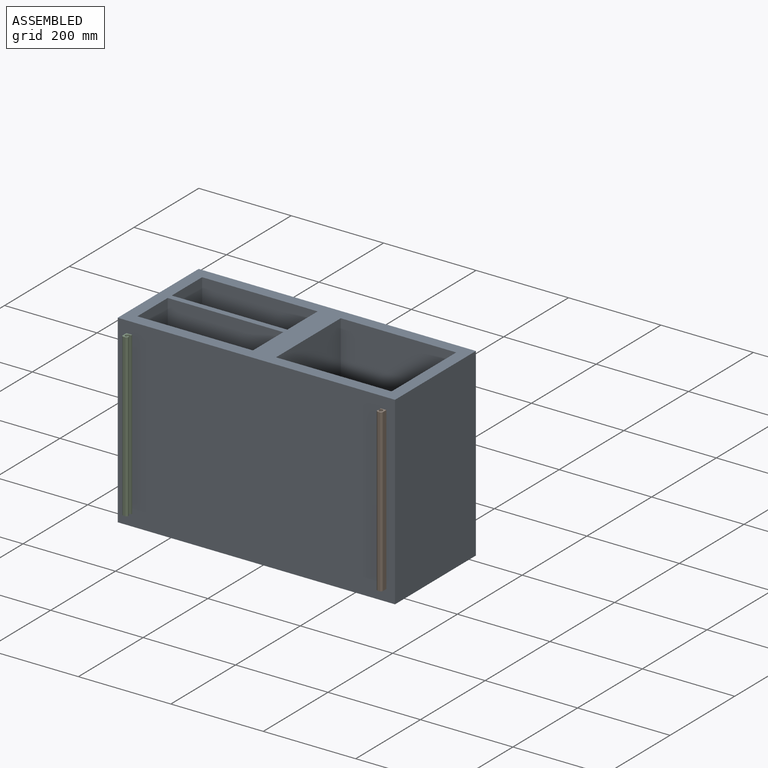
[diagram: assembled view]
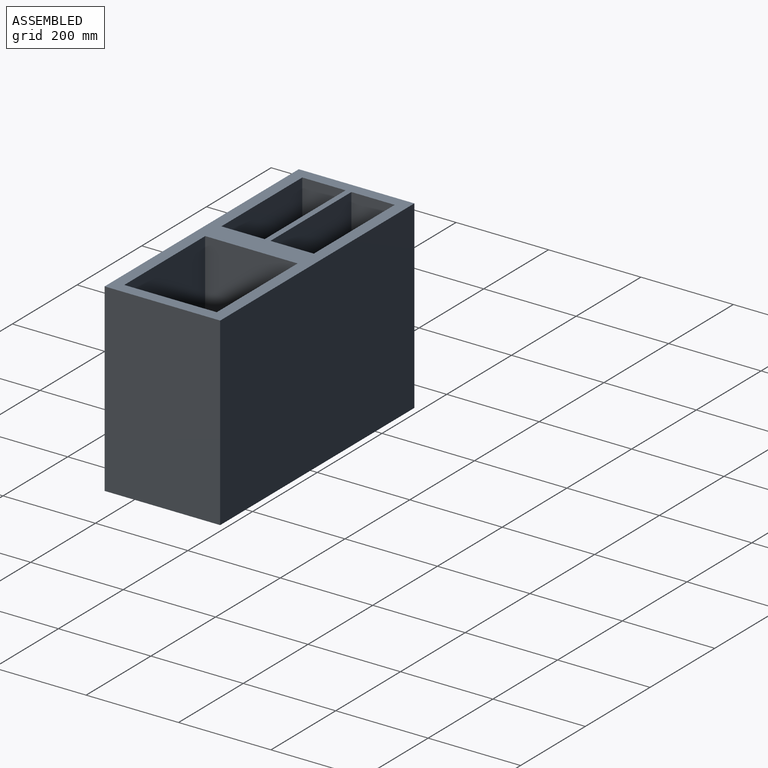
[diagram: assembled view, second angle]
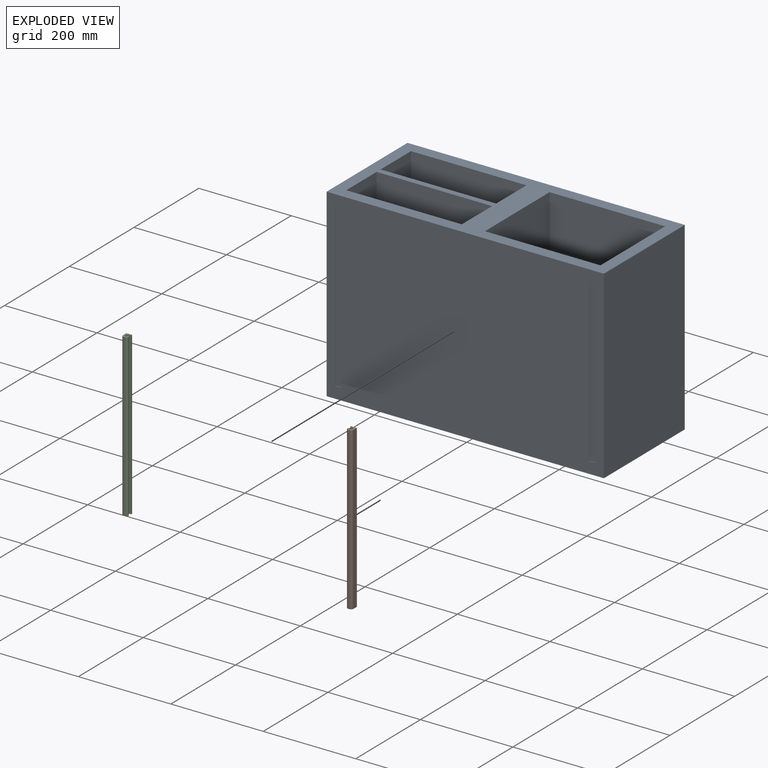
[diagram: exploded view]
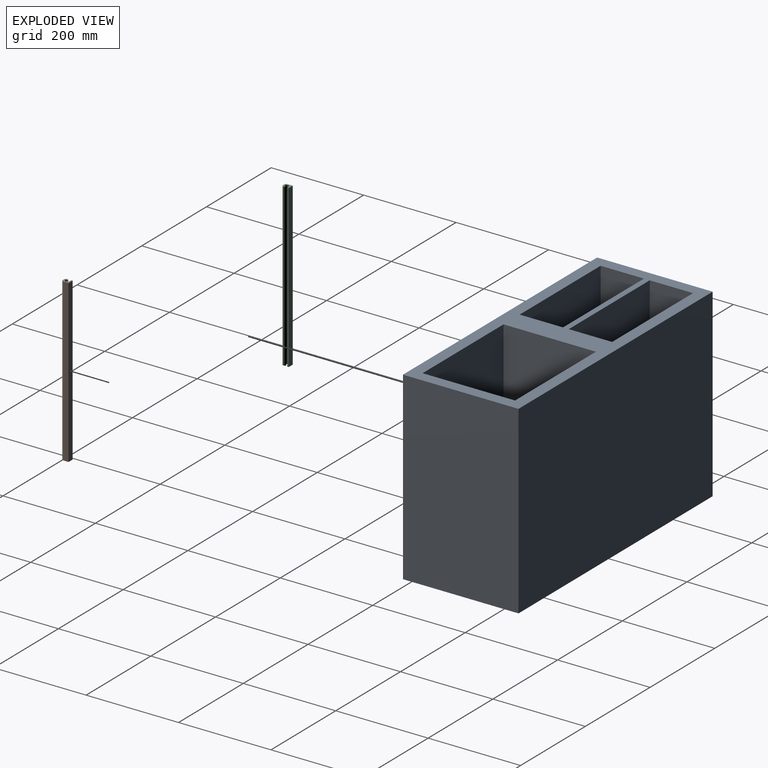
[diagram: exploded view, second angle]
ASSEMBLY  parts=3 mates=2
PART A: 28 faces, bbox 600x400x250 mm
  f0: plane 600x400mm, normal (0,0,1), area 231250mm2, adj f1,f2,f3,f4,f18,f19,f20,f21
  f1: plane 600x250mm, normal (0,1,0), area 53125mm2, adj f0,f3,f4,f5,f6,f7,f8,f9
  f2: plane 600x250mm, normal (0,-1,0), area 53125mm2, adj f0,f3,f4,f5,f6,f7,f8,f9
  f3: plane 400x250mm, normal (1,0,0), area 100000mm2, adj f0,f1,f2,f5
  f4: plane 400x250mm, normal (-1,0,0), area 100000mm2, adj f0,f1,f2,f5
  f5: plane 600x400mm, normal (0,0,-1), area 240000mm2, adj f1,f2,f3,f4
  f6: plane 400x250mm, normal (0,0,1), area 100000mm2, adj f1,f2,f7,f9
  f7: plane 400x93.75mm, normal (-1,0,0), area 37500mm2, adj f1,f2,f6,f8
  f8: plane 400x250mm, normal (0,0,-1), area 100000mm2, adj f1,f2,f7,f9
  f9: plane 400x93.75mm, normal (1,0,0), area 37500mm2, adj f1,f2,f6,f8
  f10: plane 400x250mm, normal (0,0,1), area 100000mm2, adj f1,f2,f11,f13
  f11: plane 400x93.75mm, normal (-1,0,0), area 37500mm2, adj f1,f2,f10,f12
  f12: plane 400x250mm, normal (0,0,-1), area 100000mm2, adj f1,f2,f11,f13
  f13: plane 400x93.75mm, normal (1,0,0), area 37500mm2, adj f1,f2,f10,f12
  f14: plane 400x200mm, normal (-1,0,0), area 80000mm2, adj f1,f2,f15,f17
  f15: plane 400x250mm, normal (0,0,-1), area 100000mm2, adj f1,f2,f14,f16
  f16: plane 400x200mm, normal (1,0,0), area 80000mm2, adj f1,f2,f15,f17
  f17: plane 400x250mm, normal (0,0,1), area 100000mm2, adj f1,f2,f14,f16
  f18: plane 350x1mm, normal (1,0,0), area 350mm2, adj f0,f19,f21,f22
  f19: plane 12.5x1mm, normal (0,1,0), area 12.5mm2, adj f0,f18,f20,f22
  f20: plane 350x1mm, normal (-1,0,0), area 350mm2, adj f0,f19,f21,f22
  f21: plane 12.5x1mm, normal (0,-1,0), area 12.5mm2, adj f0,f18,f20,f22
  f22: plane 350x12.5mm, normal (0,0,1), area 4375mm2, adj f18,f19,f20,f21
  f23: plane 12.5x1mm, normal (0,1,0), area 12.5mm2, adj f0,f24,f26,f27
  f24: plane 350x1mm, normal (-1,0,0), area 350mm2, adj f0,f23,f25,f27
  f25: plane 12.5x1mm, normal (0,-1,0), area 12.5mm2, adj f0,f24,f26,f27
  f26: plane 350x1mm, normal (1,0,0), area 350mm2, adj f0,f23,f25,f27
  f27: plane 350x12.5mm, normal (0,0,1), area 4375mm2, adj f23,f24,f25,f26
PART B: 15 faces, bbox 12.5x350x15.5 mm
  f0: plane 15.5x12.5mm, normal (0,-1,0), area 119.3mm2, adj f1,f3,f4,f5,f6,f7,f8,f9
  f1: plane 350x3mm, normal (-1,0,0), area 1050mm2, adj f0,f2,f4,f5
  f2: plane 15.5x12.5mm, normal (0,1,0), area 119.3mm2, adj f1,f3,f4,f5,f6,f7,f8,f9
  f3: plane 350x10.92mm, normal (1,0,0), area 3821.1mm2, adj f0,f2,f5,f7
  f4: plane 350x4.5mm, normal (0,0,1), area 1575mm2, adj f0,f1,f2,f6
  f5: plane 350x12.5mm, normal (0,0,-1), area 4375mm2, adj f0,f1,f2,f3
  f6: cylinder r=5mm len=350mm, axis (0,1,0), area 2748.9mm2, adj f0,f2,f4,f9
  f7: cylinder r=5mm len=350mm, axis (0,-1,0), area 2028.7mm2, adj f0,f2,f3,f8
  f8: plane 350x4.92mm, normal (0,0,1), area 1721.1mm2, adj f0,f2,f7,f10
  f9: cylinder r=5mm len=350mm, axis (0,1,0), area 2573.6mm2, adj f0,f2,f6,f13
  f10: cylinder r=5mm len=350mm, axis (0,-1,0), area 2028.7mm2, adj f0,f2,f8,f12
  f11: plane 350x1.41mm, normal (1,0,0), area 491.7mm2, adj f0,f2,f13,f14
  f12: plane 350x0.42mm, normal (-1,0,0), area 146.1mm2, adj f0,f2,f10,f14
  f13: cylinder r=5mm len=350mm, axis (0,1,0), area 1404.2mm2, adj f0,f2,f9,f11
  f14: cylinder r=5mm len=350mm, axis (0,1,0), area 2028.7mm2, adj f0,f2,f11,f12
PART C: 15 faces, bbox 12.5x350x15.5 mm
  f0: plane 15.5x12.5mm, normal (0,-1,0), area 119.3mm2, adj f1,f3,f4,f5,f6,f7,f8,f9
  f1: plane 350x3mm, normal (1,0,0), area 1050mm2, adj f0,f2,f4,f5
  f2: plane 15.5x12.5mm, normal (0,1,0), area 119.3mm2, adj f1,f3,f4,f5,f6,f7,f8,f9
  f3: plane 350x10.92mm, normal (-1,0,0), area 3821.1mm2, adj f0,f2,f5,f7
  f4: plane 350x4.5mm, normal (0,0,1), area 1575mm2, adj f0,f1,f2,f6
  f5: plane 350x12.5mm, normal (0,0,-1), area 4375mm2, adj f0,f1,f2,f3
  f6: cylinder r=5mm len=350mm, axis (0,1,0), area 2748.9mm2, adj f0,f2,f4,f9
  f7: cylinder r=5mm len=350mm, axis (0,-1,0), area 2028.7mm2, adj f0,f2,f3,f8
  f8: plane 350x4.92mm, normal (0,0,1), area 1721.1mm2, adj f0,f2,f7,f10
  f9: cylinder r=5mm len=350mm, axis (0,1,0), area 2573.6mm2, adj f0,f2,f6,f13
  f10: cylinder r=5mm len=350mm, axis (0,-1,0), area 2028.7mm2, adj f0,f2,f8,f12
  f11: plane 350x1.41mm, normal (-1,0,0), area 491.7mm2, adj f0,f2,f13,f14
  f12: plane 350x0.42mm, normal (1,0,0), area 146.1mm2, adj f0,f2,f10,f14
  f13: cylinder r=5mm len=350mm, axis (0,1,0), area 1404.2mm2, adj f0,f2,f9,f11
  f14: cylinder r=5mm len=350mm, axis (0,1,0), area 2028.7mm2, adj f0,f2,f11,f12
PLACE A rot(axis=(1,0,0),90deg) t=(0,0,0)mm
PLACE B rot(axis=(1,0,0),90deg) t=(0,1,0)mm
PLACE C rot(axis=(1,0,0),90deg) t=(0,0,0)mm
MATE fastened C.f5 <-> A.f0  axis (0,1,0) through (-275,-250,0)mm
MATE fastened B.f5 <-> A.f22  axis (0,1,0) through (275,-249,0)mm
